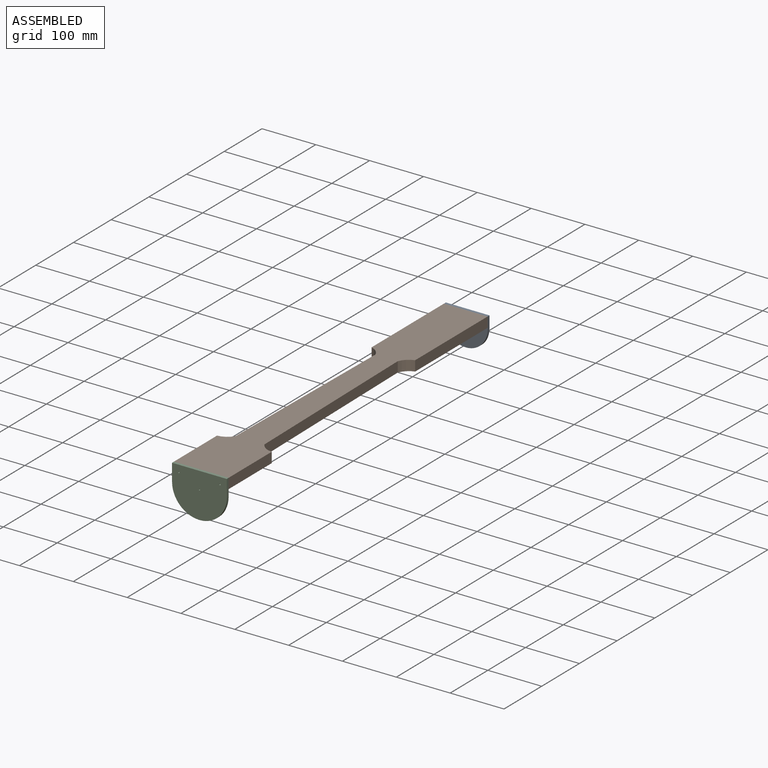
[diagram: assembled view]
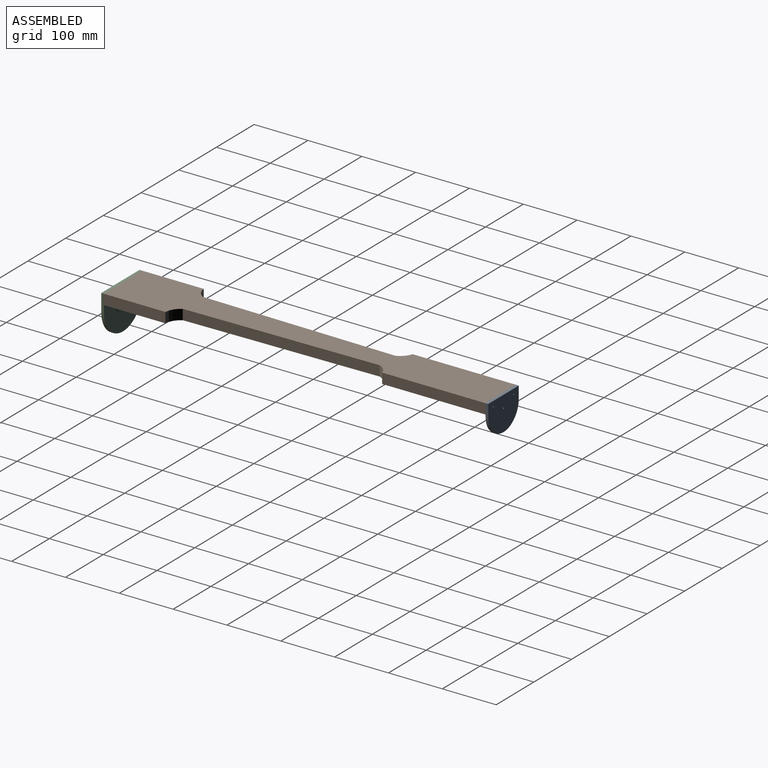
[diagram: assembled view, second angle]
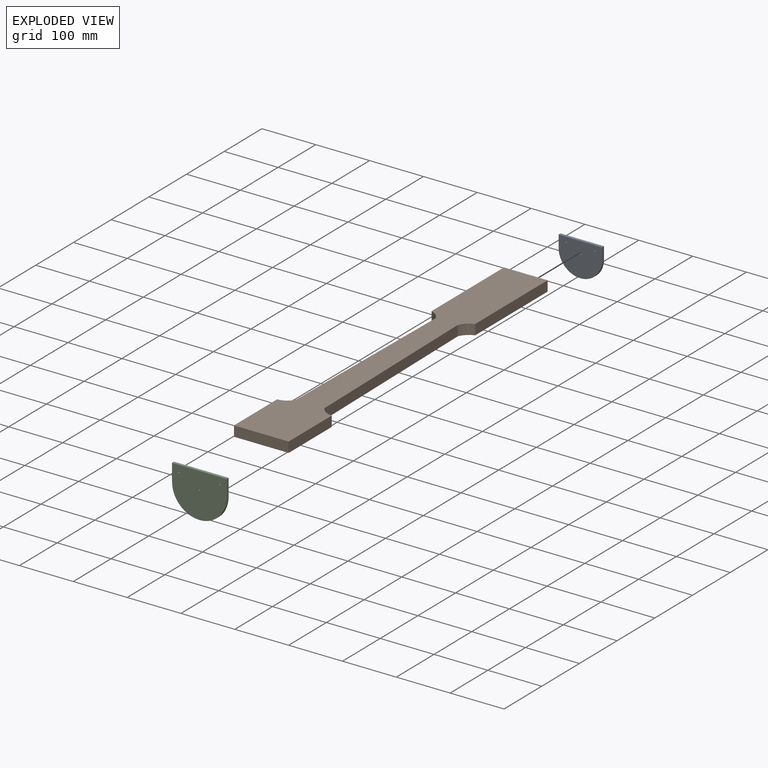
[diagram: exploded view]
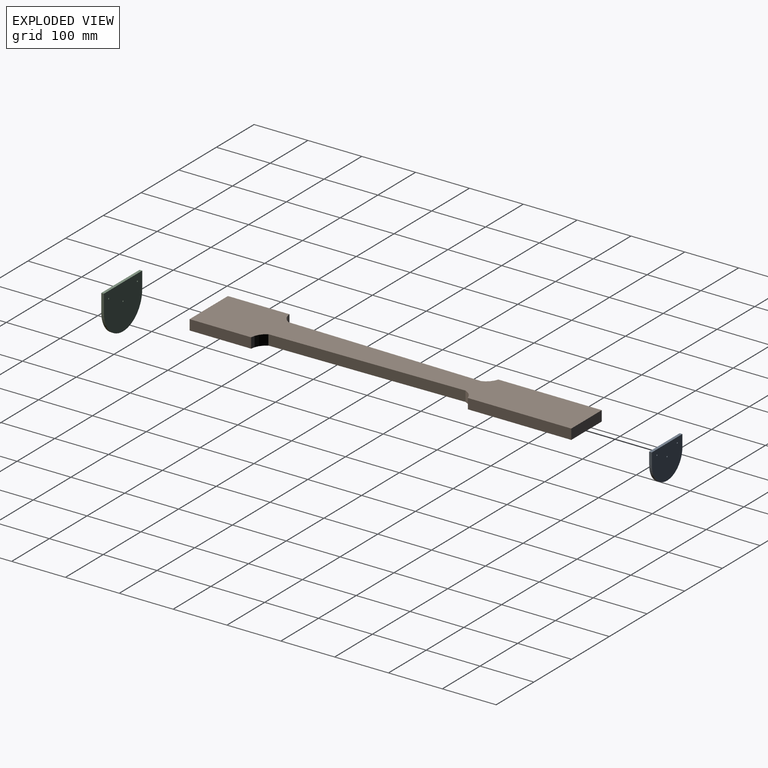
[diagram: exploded view, second angle]
ASSEMBLY  parts=3 mates=2
PART A: 9 faces, bbox 62.7x5x81 mm
  f0: plane 80.96x5mm, normal (1,0,0), area 404.8mm2, adj f1,f3,f7,f8
  f1: plane 22.23x5mm, normal (0,0,1), area 111.1mm2, adj f0,f2,f7,f8
  f2: cylinder r=40.48mm len=80.96mm, axis (0,1,0), area 635.9mm2, adj f1,f3,f7,f8
  f3: plane 22.23x5mm, normal (0,0,-1), area 111.1mm2, adj f0,f2,f7,f8
  f4: cylinder r=1.27mm len=5mm, axis (0,1,0), area 39.9mm2, adj f7,f8
  f5: cylinder r=1.27mm len=5mm, axis (0,1,0), area 39.9mm2, adj f7,f8
  f6: cylinder r=1.27mm len=5mm, axis (0,1,0), area 39.9mm2, adj f7,f8
  f7: plane 80.96x62.71mm, normal (0,-1,0), area 4358.3mm2, adj f0,f1,f2,f3,f4,f5,f6
  f8: plane 80.96x62.71mm, normal (0,1,0), area 4358.3mm2, adj f0,f1,f2,f3,f4,f5,f6
PART B: 14 faces, bbox 101.6x701.7x19.1 mm
  f0: cylinder r=30.16mm len=19.69mm, axis (0,0,-1), area 528.5mm2, adj f1,f11,f12,f13
  f1: plane 362.06x19.05mm, normal (-1,0.02,0), area 6898.1mm2, adj f0,f2,f12,f13
  f2: cylinder r=30.16mm len=24.27mm, axis (0,0,-1), area 567.2mm2, adj f1,f3,f12,f13
  f3: plane 114.3x19.05mm, normal (-1,0,0), area 2177.4mm2, adj f2,f4,f12,f13
  f4: plane 101.6x19.05mm, normal (0,-1,0), area 1935.5mm2, adj f3,f5,f12,f13
  f5: plane 114.3x19.05mm, normal (1,0,0), area 2177.4mm2, adj f4,f6,f12,f13
  f6: cylinder r=30.16mm len=24.27mm, axis (0,0,-1), area 567.2mm2, adj f5,f7,f12,f13
  f7: plane 362.06x19.05mm, normal (1,0.02,0), area 6898.1mm2, adj f6,f8,f12,f13
  f8: cylinder r=30.16mm len=19.69mm, axis (0,0,-1), area 528.5mm2, adj f7,f9,f12,f13
  f9: plane 192.09x19.05mm, normal (1,0,0), area 3659.3mm2, adj f8,f10,f12,f13
  f10: plane 80.96x19.05mm, normal (0,1,0), area 1542.3mm2, adj f9,f11,f12,f13
  f11: plane 192.09x19.05mm, normal (-1,0,0), area 3659.3mm2, adj f0,f10,f12,f13
  f12: plane 701.68x101.6mm, normal (0,0,1), area 46322.8mm2, adj f0,f1,f2,f3,f4,f5,f6,f7
  f13: plane 701.68x101.6mm, normal (0,0,-1), area 46322.8mm2, adj f0,f1,f2,f3,f4,f5,f6,f7
PART C: 9 faces, bbox 82.5x5x101.6 mm
  f0: plane 101.6x5mm, normal (1,0,0), area 508mm2, adj f1,f3,f7,f8
  f1: plane 31.71x5mm, normal (0,0,1), area 158.6mm2, adj f0,f2,f7,f8
  f2: cylinder r=50.8mm len=101.6mm, axis (0,1,0), area 798mm2, adj f1,f3,f7,f8
  f3: plane 31.71x5mm, normal (0,0,-1), area 158.6mm2, adj f0,f2,f7,f8
  f4: cylinder r=1.27mm len=5mm, axis (0,1,0), area 39.9mm2, adj f7,f8
  f5: cylinder r=1.27mm len=5mm, axis (0,1,0), area 39.9mm2, adj f7,f8
  f6: cylinder r=1.27mm len=5mm, axis (0,1,0), area 39.9mm2, adj f7,f8
  f7: plane 101.6x82.51mm, normal (0,-1,0), area 7260.3mm2, adj f0,f1,f2,f3,f4,f5,f6
  f8: plane 101.6x82.51mm, normal (0,1,0), area 7260.3mm2, adj f0,f1,f2,f3,f4,f5,f6
PLACE A rot(axis=(0,-1,0),90deg) t=(43.55,384.02,-8.15)mm
PLACE B t=(43.55,28.18,-4.97)mm
PLACE C rot(axis=(0,-1,0),90deg) t=(43.55,-322.66,-17.63)mm
MATE fastened C.f8 <-> B.f4  axis (0,1,0) through (-7.25,-322.66,14.08)mm
MATE fastened A.f7 <-> B.f10  axis (0,-1,0) through (84.03,379.02,14.08)mm
